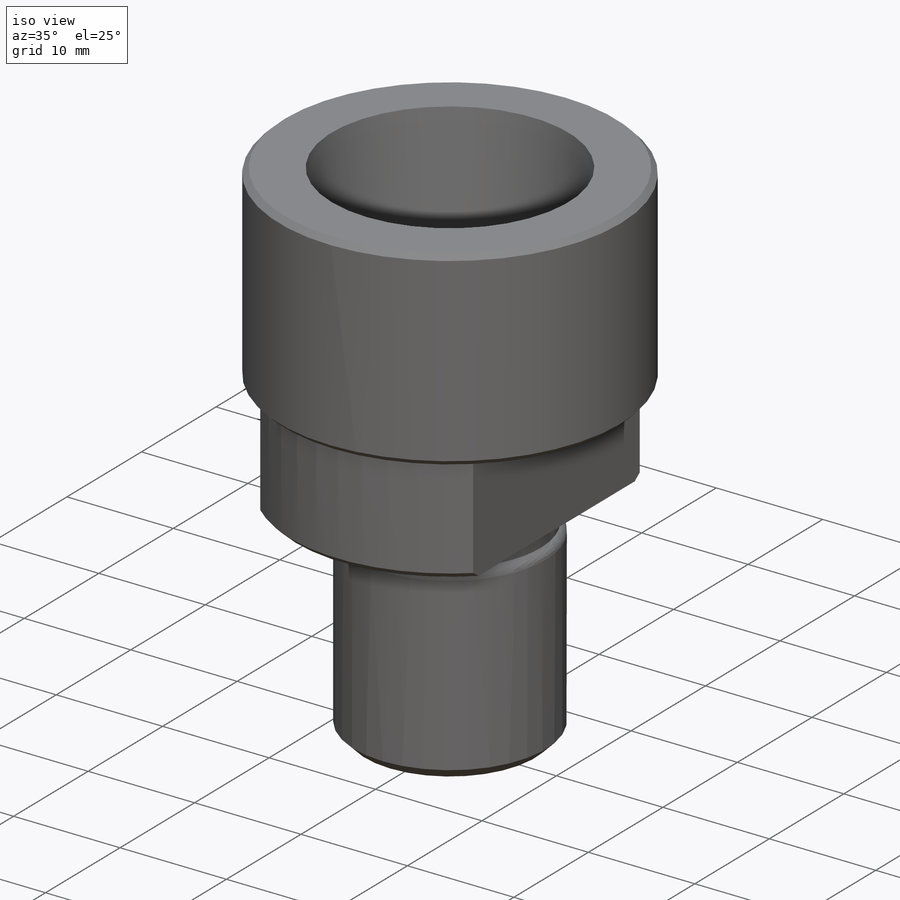
[diagram: iso view]
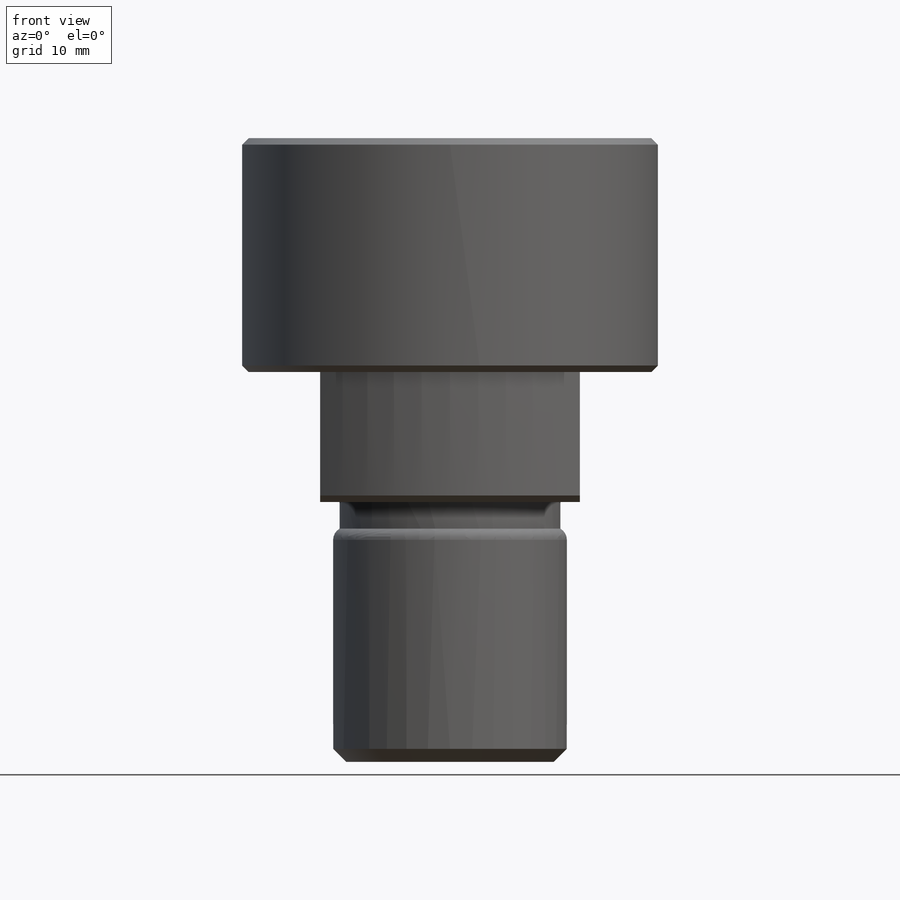
[diagram: front view]
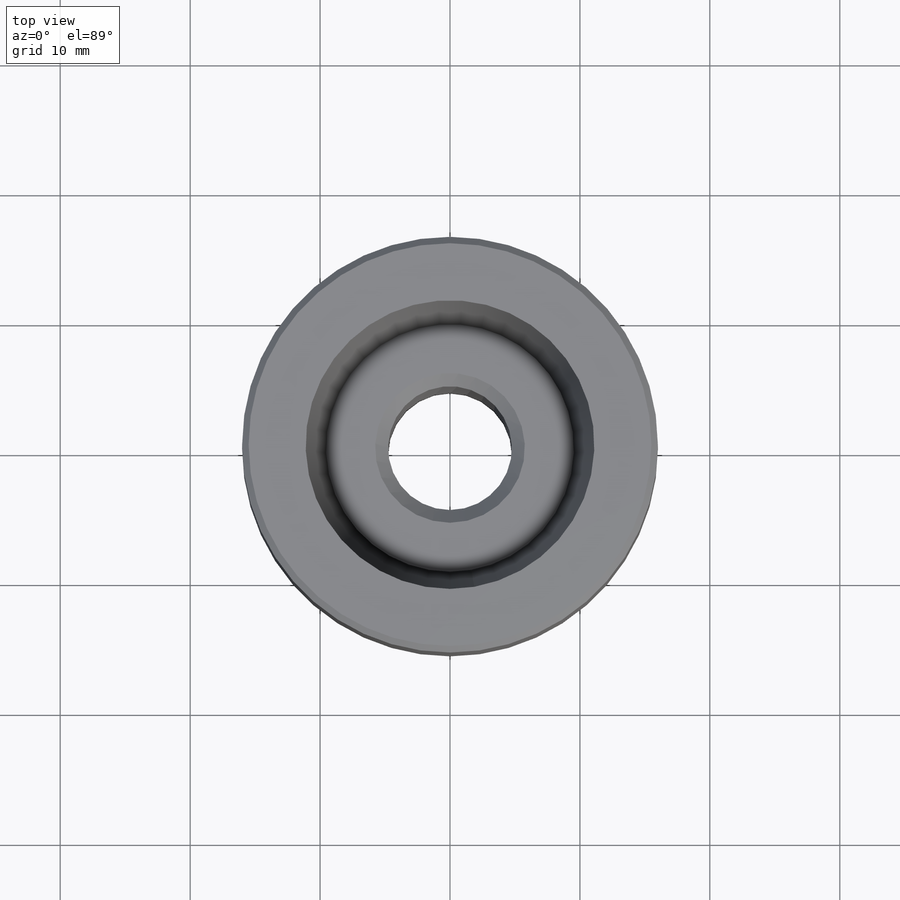
[diagram: top view]
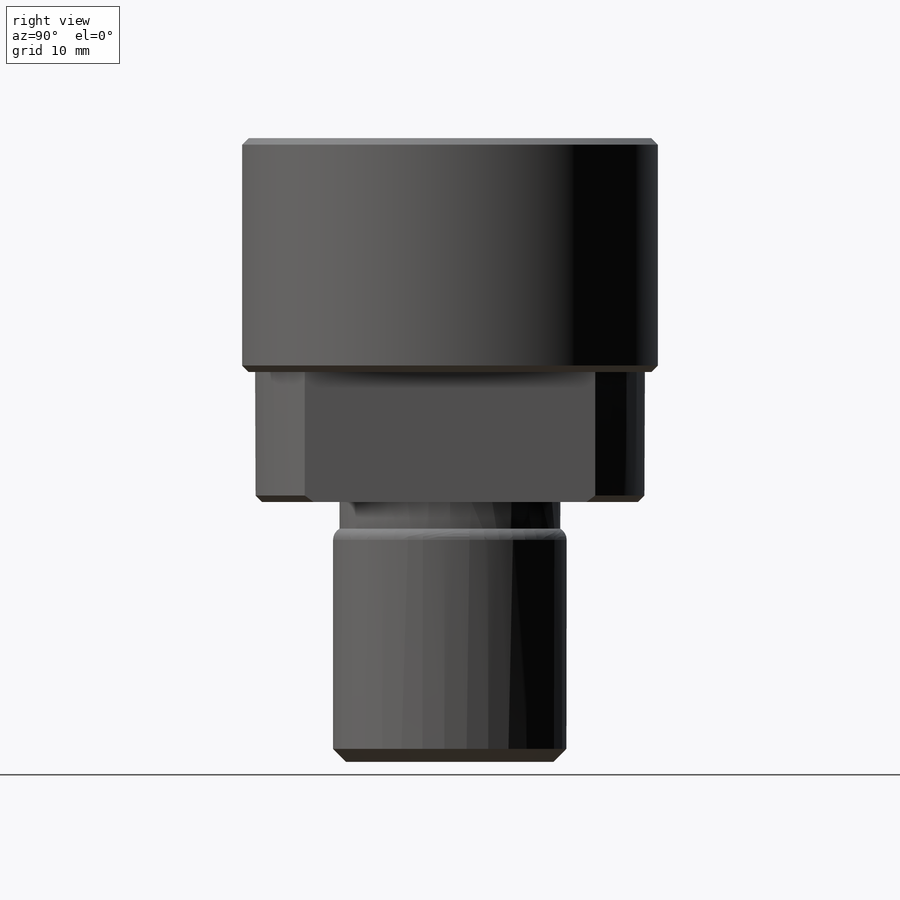
[diagram: right view]
SOLIDWORKS PART (.sldprt)
format: sldprt  version: not decoded by parser v0  size: 217,088 bytes
history: native  units: mm
features: plane x3, fillet x3, sketch x2, material x1, revolve x1, chamfer x1, cut_extrude x1 (+10 scaffold rows collapsed)
feature tree (22):
  scaffold x10  (default folders/planes/origin — collapsed)
  material  "Material <sin especificar>"
  plane  "Alzado"
  plane  "Planta"
  plane  "Vista lateral"
  sketch  "Croquis1"  dims[c1.D1=18.0mm c1.D2=10.0mm c1.D3=16.0mm c1.D4=4.7625mm c1.D5=~6.749356mm c1.D6=11.11mm c1.D7=15.0mm c1.D8=1.0mm c1.D9=~1.12401mm c2.D9=90.0deg c3.D9=0.5mm c3.D3=30.0mm c3.D10=~11.511856mm c3.D5=9.0mm c4.D10=15.0mm c4.D12=8.5mm c4.D13=16.0mm c4.D14=15.0mm c4.D6=11.11mm c4.D7=9.525mm c4.D8=1.0mm c4.D9=1.0mm]
  revolve  "Revolución1"  Angle=360deg
  chamfer  "Chaflán1"  Distance=1mm Angle=45deg
  fillet  "Redondeo1"  Radius=1mm
  fillet  "Chaflán2"  Radius=0.5mm
  sketch  "Croquis3"  dims[D1=10.0mm D2=10.0mm]
  cut_extrude  "Cortar-Extruir1"  [1 undecoded]
  fillet  "Chaflán3"  Radius=1mm
decode coverage: 7 of 8 modeling features carry decoded parameters
note: ~ marks probable driven/reference dimensions
note: 1 parameter value undecoded
note: suppression state not decoded; provenance and decode notes live in map.json
